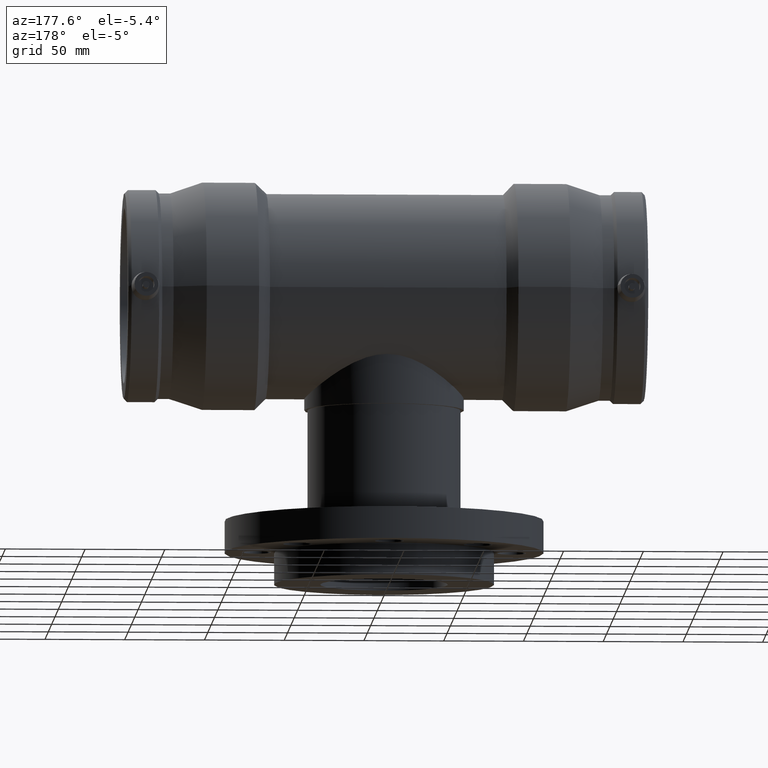
[diagram: clean part render]
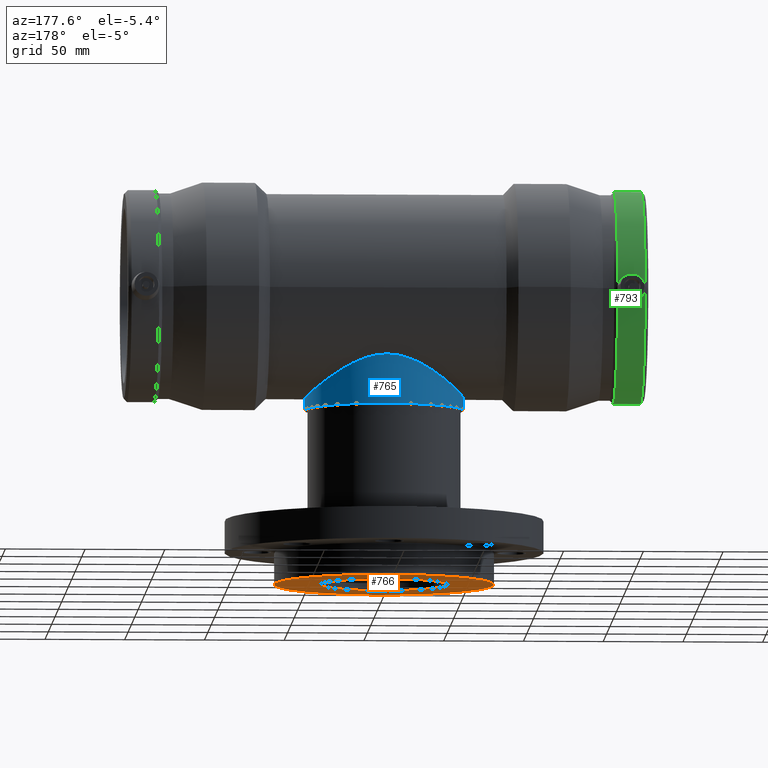
[diagram: same view with three faces highlighted in distinct colors, each labeled with its STEP entity id]
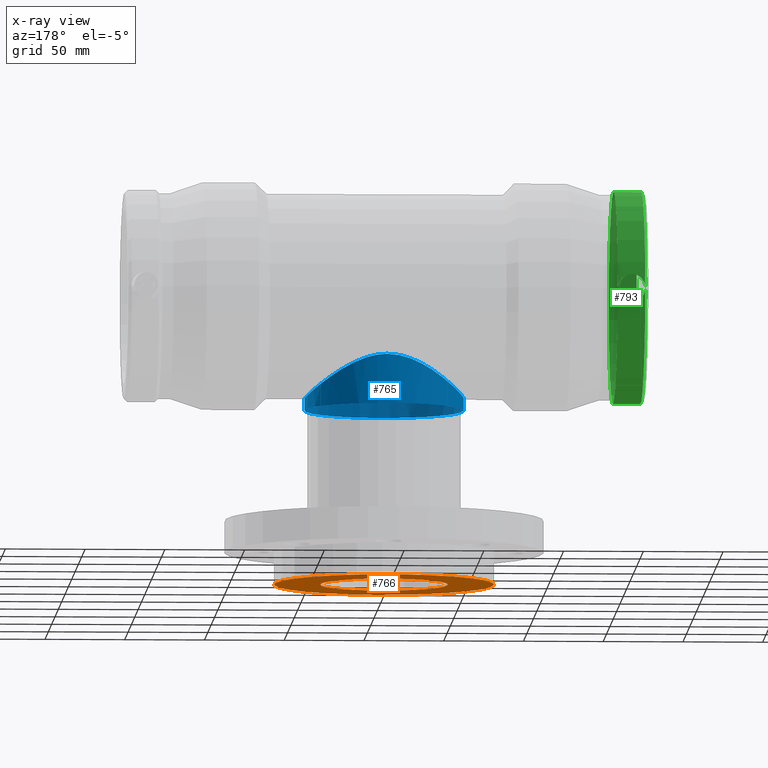
[diagram: x-ray of the same camera — body ghosted, the three highlighted faces saturated]
A machine part, auxiliary view with three faces highlighted in distinct colors.
The next image is the same camera in x-ray (body ghosted, the three faces saturated) — at least one of them is partly hidden behind the body in this view.
Their STEP definitions:

[orange] entity #766 — the highlighted planar face has unit normal (-0, 0, -1).
#30=PLANE('',#849);
#54=FACE_BOUND('',#305,.T.);
#133=CIRCLE('',#846,40.);
#135=CIRCLE('',#850,69.);
#230=FACE_OUTER_BOUND('',#304,.T.);
#304=EDGE_LOOP('',(#614));
#305=EDGE_LOOP('',(#615));
#453=VERTEX_POINT('',#1533);
#456=VERTEX_POINT('',#1606);
#527=EDGE_CURVE('',#453,#453,#133,.T.);
#530=EDGE_CURVE('',#456,#456,#135,.T.);
#614=ORIENTED_EDGE('',*,*,#530,.T.);
#615=ORIENTED_EDGE('',*,*,#527,.F.);
#766=ADVANCED_FACE('',(#230,#54),#30,.T.);
#846=AXIS2_PLACEMENT_3D('',#1534,#1005,#1006);
#849=AXIS2_PLACEMENT_3D('',#1605,#1011,#1012);
#850=AXIS2_PLACEMENT_3D('',#1607,#1013,#1014);
#1005=DIRECTION('center_axis',(-1.22464679914735E-16,0.,-1.));
#1006=DIRECTION('ref_axis',(1.,0.,-1.22464679914735E-16));
#1011=DIRECTION('center_axis',(-1.22464679914735E-16,0.,-1.));
#1012=DIRECTION('ref_axis',(-1.,0.,0.));
#1013=DIRECTION('center_axis',(-1.22464679914735E-16,0.,-1.));
#1014=DIRECTION('ref_axis',(1.,0.,-1.22464679914735E-16));
#1533=CARTESIAN_POINT('',(-40.,0.,-181.));
#1534=CARTESIAN_POINT('Origin',(-2.21661070645671E-14,0.,-181.));
#1605=CARTESIAN_POINT('Origin',(-40.,0.,-181.));
#1606=CARTESIAN_POINT('',(-69.,0.,-181.));
#1607=CARTESIAN_POINT('Origin',(-2.21661070645671E-14,0.,-181.));

[blue] entity #765 — the highlighted cylindrical surface (bore or boss wall) has radius 50 mm, axis along (-0, 0, -1).
#53=FACE_BOUND('',#303,.T.);
#134=CIRCLE('',#848,50.);
#194=CYLINDRICAL_SURFACE('',#847,50.);
#229=FACE_OUTER_BOUND('',#302,.T.);
#302=EDGE_LOOP('',(#612));
#303=EDGE_LOOP('',(#613));
#424=B_SPLINE_CURVE_WITH_KNOTS('',3,(#1539,#1540,#1541,#1542,#1543,#1544,
#1545,#1546,#1547,#1548,#1549,#1550,#1551,#1552,#1553,#1554,#1555,#1556,
#1557,#1558,#1559,#1560,#1561,#1562,#1563,#1564,#1565,#1566,#1567,#1568,
#1569,#1570,#1571,#1572,#1573,#1574,#1575,#1576,#1577,#1578,#1579,#1580,
#1581,#1582,#1583,#1584,#1585,#1586,#1587,#1588,#1589,#1590,#1591,#1592,
#1593,#1594,#1595,#1596,#1597,#1598,#1599,#1600,#1601,#1602,#1603,#1604),
 .UNSPECIFIED.,.T.,.F.,(4,2,2,2,2,2,2,2,2,2,2,2,2,2,2,2,2,2,2,2,2,2,2,2,
2,2,2,2,2,2,2,2,4),(0.,1.01632762894316,2.03265525788632,3.04898288682948,
4.06531051577264,5.05525954704069,6.04520857830873,7.03515760957678,8.02510664084483,
9.01505567211288,10.0050047033809,10.994953734649,11.984902765917,13.0012303948602,
14.0175580238033,15.0338856527465,16.0502132816897,17.0665409106328,18.082868539576,
19.0991961685191,20.1155237974623,21.1054728287303,22.0954218599984,23.0853708912664,
24.0753199225345,25.0652689538025,26.0552179850706,27.0451670163386,28.0351160476067,
29.0514436765498,30.067771305493,31.0840989344362,32.1004265633793),
 .UNSPECIFIED.);
#454=VERTEX_POINT('',#1536);
#455=VERTEX_POINT('',#1538);
#528=EDGE_CURVE('',#454,#454,#134,.T.);
#529=EDGE_CURVE('',#455,#455,#424,.T.);
#612=ORIENTED_EDGE('',*,*,#528,.F.);
#613=ORIENTED_EDGE('',*,*,#529,.F.);
#765=ADVANCED_FACE('',(#229,#53),#194,.T.);
#847=AXIS2_PLACEMENT_3D('',#1535,#1007,#1008);
#848=AXIS2_PLACEMENT_3D('',#1537,#1009,#1010);
#1007=DIRECTION('center_axis',(-1.22464679914735E-16,0.,-1.));
#1008=DIRECTION('ref_axis',(-1.,0.,0.));
#1009=DIRECTION('center_axis',(-1.22464679914735E-16,0.,-1.));
#1010=DIRECTION('ref_axis',(1.,0.,-1.22464679914735E-16));
#1535=CARTESIAN_POINT('Origin',(-4.37811230695179E-15,0.,-35.75));
#1536=CARTESIAN_POINT('',(-50.,0.,-71.5));
#1537=CARTESIAN_POINT('Origin',(-8.75622461390358E-15,0.,-71.5));
#1538=CARTESIAN_POINT('',(-6.66133814775094E-15,50.,-40.5083016183103));
#1539=CARTESIAN_POINT('Ctrl Pts',(-6.66133814775094E-15,50.,-40.5083016183103));
#1540=CARTESIAN_POINT('Ctrl Pts',(-3.38775876314387,50.,-40.5083016183103));
#1541=CARTESIAN_POINT('Ctrl Pts',(-6.76821417065702,49.6530092154703,-40.9460611472531));
#1542=CARTESIAN_POINT('Ctrl Pts',(-13.3336580549423,48.3057307367447,-42.5271397436577));
#1543=CARTESIAN_POINT('Ctrl Pts',(-16.5206404051619,47.3060956659843,-43.6627251973018));
#1544=CARTESIAN_POINT('Ctrl Pts',(-22.5698770369614,44.7369999257476,-46.2914773387385));
#1545=CARTESIAN_POINT('Ctrl Pts',(-25.4374008903258,43.1651097340531,-47.7831501579383));
#1546=CARTESIAN_POINT('Ctrl Pts',(-30.7442857881522,39.5610534911403,-50.8072749250213));
#1547=CARTESIAN_POINT('Ctrl Pts',(-33.1831578254987,37.5275202931561,-52.3389554612186));
#1548=CARTESIAN_POINT('Ctrl Pts',(-37.4711417266261,33.2395363920287,-55.1585712127573));
#1549=CARTESIAN_POINT('Ctrl Pts',(-39.4915411273443,30.833731517543,-56.5588163017742));
#1550=CARTESIAN_POINT('Ctrl Pts',(-43.1096182759899,25.531581088926,-59.1418385571116));
#1551=CARTESIAN_POINT('Ctrl Pts',(-44.7073990991172,22.6347937886579,-60.3235644486224));
#1552=CARTESIAN_POINT('Ctrl Pts',(-47.3138498682455,16.5071241317371,-62.2798623448944));
#1553=CARTESIAN_POINT('Ctrl Pts',(-48.3247439488991,13.2692117298588,-63.0556912662656));
#1554=CARTESIAN_POINT('Ctrl Pts',(-49.6681157397346,6.66566850664518,-64.0910371617842));
#1555=CARTESIAN_POINT('Ctrl Pts',(-50.,3.29983010422682,-64.35));
#1556=CARTESIAN_POINT('Ctrl Pts',(-50.,-3.29983010422682,-64.35));
#1557=CARTESIAN_POINT('Ctrl Pts',(-49.6681157397346,-6.66566850664517,-64.0910371617842));
#1558=CARTESIAN_POINT('Ctrl Pts',(-48.3247439488991,-13.2692117298588,-63.0556912662656));
#1559=CARTESIAN_POINT('Ctrl Pts',(-47.3138498682455,-16.5071241317371,-62.2798623448944));
#1560=CARTESIAN_POINT('Ctrl Pts',(-44.7073990991172,-22.6347937886579,-60.3235644486224));
#1561=CARTESIAN_POINT('Ctrl Pts',(-43.1096182759899,-25.531581088926,-59.1418385571116));
#1562=CARTESIAN_POINT('Ctrl Pts',(-39.4915411273443,-30.833731517543,-56.5588163017743));
#1563=CARTESIAN_POINT('Ctrl Pts',(-37.4711417266261,-33.2395363920287,-55.1585712127573));
#1564=CARTESIAN_POINT('Ctrl Pts',(-33.1831578254987,-37.5275202931561,-52.3389554612186));
#1565=CARTESIAN_POINT('Ctrl Pts',(-30.7442857881521,-39.5610534911403,-50.8072749250213));
#1566=CARTESIAN_POINT('Ctrl Pts',(-25.4374008903258,-43.1651097340531,-47.7831501579382));
#1567=CARTESIAN_POINT('Ctrl Pts',(-22.5698770369614,-44.7369999257476,-46.2914773387385));
#1568=CARTESIAN_POINT('Ctrl Pts',(-16.5206404051619,-47.3060956659843,-43.6627251973018));
#1569=CARTESIAN_POINT('Ctrl Pts',(-13.3336580549423,-48.3057307367447,-42.5271397436577));
#1570=CARTESIAN_POINT('Ctrl Pts',(-6.76821417065702,-49.6530092154703,-40.9460611472531));
#1571=CARTESIAN_POINT('Ctrl Pts',(-3.38775876314387,-50.,-40.5083016183103));
#1572=CARTESIAN_POINT('Ctrl Pts',(3.38775876314386,-50.,-40.5083016183103));
#1573=CARTESIAN_POINT('Ctrl Pts',(6.76821417065702,-49.6530092154703,-40.9460611472531));
#1574=CARTESIAN_POINT('Ctrl Pts',(13.3336580549423,-48.3057307367447,-42.5271397436577));
#1575=CARTESIAN_POINT('Ctrl Pts',(16.5206404051619,-47.3060956659843,-43.6627251973018));
#1576=CARTESIAN_POINT('Ctrl Pts',(22.5698770369614,-44.7369999257476,-46.2914773387385));
#1577=CARTESIAN_POINT('Ctrl Pts',(25.4374008903258,-43.1651097340531,-47.7831501579383));
#1578=CARTESIAN_POINT('Ctrl Pts',(30.7442857881521,-39.5610534911404,-50.8072749250213));
#1579=CARTESIAN_POINT('Ctrl Pts',(33.1831578254987,-37.5275202931561,-52.3389554612186));
#1580=CARTESIAN_POINT('Ctrl Pts',(37.4711417266261,-33.2395363920287,-55.1585712127573));
#1581=CARTESIAN_POINT('Ctrl Pts',(39.4915411273443,-30.833731517543,-56.5588163017742));
#1582=CARTESIAN_POINT('Ctrl Pts',(43.1096182759899,-25.531581088926,-59.1418385571116));
#1583=CARTESIAN_POINT('Ctrl Pts',(44.7073990991172,-22.6347937886579,-60.3235644486224));
#1584=CARTESIAN_POINT('Ctrl Pts',(47.3138498682455,-16.5071241317372,-62.2798623448944));
#1585=CARTESIAN_POINT('Ctrl Pts',(48.3247439488991,-13.2692117298588,-63.0556912662656));
#1586=CARTESIAN_POINT('Ctrl Pts',(49.6681157397345,-6.6656685066452,-64.0910371617842));
#1587=CARTESIAN_POINT('Ctrl Pts',(50.,-3.29983010422684,-64.35));
#1588=CARTESIAN_POINT('Ctrl Pts',(50.,3.29983010422683,-64.35));
#1589=CARTESIAN_POINT('Ctrl Pts',(49.6681157397345,6.66566850664519,-64.0910371617842));
#1590=CARTESIAN_POINT('Ctrl Pts',(48.3247439488991,13.2692117298588,-63.0556912662656));
#1591=CARTESIAN_POINT('Ctrl Pts',(47.3138498682455,16.5071241317372,-62.2798623448944));
#1592=CARTESIAN_POINT('Ctrl Pts',(44.7073990991172,22.6347937886579,-60.3235644486224));
#1593=CARTESIAN_POINT('Ctrl Pts',(43.1096182759899,25.531581088926,-59.1418385571116));
#1594=CARTESIAN_POINT('Ctrl Pts',(39.4915411273443,30.833731517543,-56.5588163017742));
#1595=CARTESIAN_POINT('Ctrl Pts',(37.4711417266261,33.2395363920287,-55.1585712127573));
#1596=CARTESIAN_POINT('Ctrl Pts',(33.1831578254987,37.5275202931561,-52.3389554612186));
#1597=CARTESIAN_POINT('Ctrl Pts',(30.7442857881521,39.5610534911403,-50.8072749250213));
#1598=CARTESIAN_POINT('Ctrl Pts',(25.4374008903258,43.1651097340531,-47.7831501579383));
#1599=CARTESIAN_POINT('Ctrl Pts',(22.5698770369614,44.7369999257476,-46.2914773387385));
#1600=CARTESIAN_POINT('Ctrl Pts',(16.5206404051619,47.3060956659843,-43.6627251973018));
#1601=CARTESIAN_POINT('Ctrl Pts',(13.3336580549423,48.3057307367447,-42.5271397436577));
#1602=CARTESIAN_POINT('Ctrl Pts',(6.76821417065702,49.6530092154703,-40.9460611472531));
#1603=CARTESIAN_POINT('Ctrl Pts',(3.38775876314386,50.,-40.5083016183103));
#1604=CARTESIAN_POINT('Ctrl Pts',(-6.66133814775094E-15,50.,-40.5083016183103));

[green] entity #793 — the highlighted cylindrical surface (partial cylindrical patch) has radius 66.495 mm, axis along (1, 0, 0).
#161=CIRCLE('',#903,66.495);
#162=CIRCLE('',#904,66.495);
#209=CYLINDRICAL_SURFACE('',#902,66.495);
#257=FACE_OUTER_BOUND('',#368,.T.);
#368=EDGE_LOOP('',(#694,#695,#696,#697,#698));
#432=B_SPLINE_CURVE_WITH_KNOTS('',3,(#1751,#1752,#1753,#1754,#1755,#1756,
#1757,#1758,#1759,#1760),.UNSPECIFIED.,.F.,.F.,(4,2,2,2,4),(5.30732139785311,
5.63925467218214,5.97118794651117,6.30266984691378,6.49515131905109),
 .UNSPECIFIED.);
#433=B_SPLINE_CURVE_WITH_KNOTS('',3,(#1761,#1762,#1763,#1764,#1765,#1766,
#1767,#1768,#1769,#1770),.UNSPECIFIED.,.F.,.F.,(4,2,2,2,4),(4.11949147665512,
4.31197294879243,4.64345484919504,4.97538812352407,5.30732139785311),
 .UNSPECIFIED.);
#434=B_SPLINE_CURVE_WITH_KNOTS('',3,(#1771,#1772,#1773,#1774,#1775,#1776,
#1777,#1778,#1779,#1780,#1781,#1782,#1783,#1784,#1785,#1786,#1787,#1788),
 .UNSPECIFIED.,.F.,.F.,(4,2,2,2,2,2,2,2,4),(1.46583077772857,1.65831224986588,
1.98979415026849,2.32172742459752,2.65366069892655,2.98559397325558,3.31752724758462,
3.64900914798722,3.84149062012454),.UNSPECIFIED.);
#481=VERTEX_POINT('',#1730);
#482=VERTEX_POINT('',#1731);
#483=VERTEX_POINT('',#1740);
#484=VERTEX_POINT('',#1741);
#485=VERTEX_POINT('',#1750);
#563=EDGE_CURVE('',#485,#483,#432,.T.);
#564=EDGE_CURVE('',#481,#485,#433,.T.);
#565=EDGE_CURVE('',#484,#482,#434,.T.);
#566=EDGE_CURVE('',#482,#481,#161,.T.);
#567=EDGE_CURVE('',#484,#483,#162,.T.);
#694=ORIENTED_EDGE('',*,*,#565,.T.);
#695=ORIENTED_EDGE('',*,*,#566,.T.);
#696=ORIENTED_EDGE('',*,*,#564,.T.);
#697=ORIENTED_EDGE('',*,*,#563,.T.);
#698=ORIENTED_EDGE('',*,*,#567,.F.);
#793=ADVANCED_FACE('',(#257),#209,.T.);
#902=AXIS2_PLACEMENT_3D('',#1789,#1117,#1118);
#903=AXIS2_PLACEMENT_3D('',#1790,#1119,#1120);
#904=AXIS2_PLACEMENT_3D('',#1791,#1121,#1122);
#1117=DIRECTION('center_axis',(1.,0.,0.));
#1118=DIRECTION('ref_axis',(0.,1.,0.));
#1119=DIRECTION('center_axis',(1.,0.,0.));
#1120=DIRECTION('ref_axis',(0.,0.,-1.));
#1121=DIRECTION('center_axis',(1.,0.,0.));
#1122=DIRECTION('ref_axis',(0.,0.,-1.));
#1730=CARTESIAN_POINT('',(-161.005149999538,66.4799046119833,-1.41679490472735));
#1731=CARTESIAN_POINT('',(-161.005149999538,66.4799046119833,1.4167949047273));
#1740=CARTESIAN_POINT('',(-143.69485,66.4799046119106,-1.41679490092012));
#1741=CARTESIAN_POINT('',(-143.69485,66.4799046119106,1.41679490092012));
#1750=CARTESIAN_POINT('',(-152.35,65.907397237327,-8.82043164483393));
#1751=CARTESIAN_POINT('Ctrl Pts',(-152.35,65.9073972373269,-8.82043164483393));
#1752=CARTESIAN_POINT('Ctrl Pts',(-151.243555752237,65.9073972373269,-8.82043164483393));
#1753=CARTESIAN_POINT('Ctrl Pts',(-150.065051372748,65.9385047281811,-8.5968943038254));
#1754=CARTESIAN_POINT('Ctrl Pts',(-147.901032645472,66.0502156277954,-7.69168447984535));
#1755=CARTESIAN_POINT('Ctrl Pts',(-146.915385013028,66.1291443466962,-7.01012474216769));
#1756=CARTESIAN_POINT('Ctrl Pts',(-145.362526559014,66.2765565525366,-5.44260469881843));
#1757=CARTESIAN_POINT('Ctrl Pts',(-144.690780629847,66.3546689981732,-4.45217469181368));
#1758=CARTESIAN_POINT('Ctrl Pts',(-143.986754776889,66.4415931510995,-2.73810766127561));
#1759=CARTESIAN_POINT('Ctrl Pts',(-143.8017034899,66.4658307052663,-2.07718122121157));
#1760=CARTESIAN_POINT('Ctrl Pts',(-143.69485,66.4799046119106,-1.41679490092012));
#1761=CARTESIAN_POINT('Ctrl Pts',(-161.005149999388,66.47990461183,-1.41679490469983));
#1762=CARTESIAN_POINT('Ctrl Pts',(-160.898296509204,66.4658307051492,-2.07718122494439));
#1763=CARTESIAN_POINT('Ctrl Pts',(-160.713245223111,66.4415931510995,-2.73810766127561));
#1764=CARTESIAN_POINT('Ctrl Pts',(-160.009219370153,66.3546689981732,-4.45217469181368));
#1765=CARTESIAN_POINT('Ctrl Pts',(-159.337473440986,66.2765565525366,-5.44260469881843));
#1766=CARTESIAN_POINT('Ctrl Pts',(-157.784614986972,66.1291443466962,-7.01012474216769));
#1767=CARTESIAN_POINT('Ctrl Pts',(-156.798967354528,66.0502156277954,-7.69168447984535));
#1768=CARTESIAN_POINT('Ctrl Pts',(-154.634948627252,65.9385047281811,-8.5968943038254));
#1769=CARTESIAN_POINT('Ctrl Pts',(-153.456444247763,65.9073972373269,-8.82043164483393));
#1770=CARTESIAN_POINT('Ctrl Pts',(-152.35,65.9073972373269,-8.82043164483393));
#1771=CARTESIAN_POINT('Ctrl Pts',(-143.69485,66.4799046119106,1.41679490092012));
#1772=CARTESIAN_POINT('Ctrl Pts',(-143.8017034899,66.4658307052663,2.07718122121158));
#1773=CARTESIAN_POINT('Ctrl Pts',(-143.986754776889,66.4415931510995,2.73810766127563));
#1774=CARTESIAN_POINT('Ctrl Pts',(-144.690780629847,66.3546689981732,4.4521746918137));
#1775=CARTESIAN_POINT('Ctrl Pts',(-145.362526559014,66.2765565525366,5.44260469881843));
#1776=CARTESIAN_POINT('Ctrl Pts',(-146.915385013028,66.1291443466962,7.01012474216769));
#1777=CARTESIAN_POINT('Ctrl Pts',(-147.901032645472,66.0502156277954,7.69168447984535));
#1778=CARTESIAN_POINT('Ctrl Pts',(-150.065051372748,65.9385047281811,8.59689430382541));
#1779=CARTESIAN_POINT('Ctrl Pts',(-151.243555752237,65.9073972373269,8.82043164483394));
#1780=CARTESIAN_POINT('Ctrl Pts',(-153.456444247763,65.9073972373269,8.82043164483394));
#1781=CARTESIAN_POINT('Ctrl Pts',(-154.634948627252,65.9385047281811,8.59689430382541));
#1782=CARTESIAN_POINT('Ctrl Pts',(-156.798967354528,66.0502156277954,7.69168447984536));
#1783=CARTESIAN_POINT('Ctrl Pts',(-157.784614986972,66.1291443466962,7.01012474216769));
#1784=CARTESIAN_POINT('Ctrl Pts',(-159.337473440986,66.2765565525366,5.44260469881843));
#1785=CARTESIAN_POINT('Ctrl Pts',(-160.009219370153,66.3546689981732,4.4521746918137));
#1786=CARTESIAN_POINT('Ctrl Pts',(-160.713245223111,66.4415931510995,2.73810766127562));
#1787=CARTESIAN_POINT('Ctrl Pts',(-160.898296509204,66.4658307051492,2.07718122494433));
#1788=CARTESIAN_POINT('Ctrl Pts',(-161.005149999388,66.47990461183,1.41679490469977));
#1789=CARTESIAN_POINT('Origin',(-152.35,0.,0.));
#1790=CARTESIAN_POINT('Origin',(-161.00515,0.,0.));
#1791=CARTESIAN_POINT('Origin',(-143.69485,0.,0.));